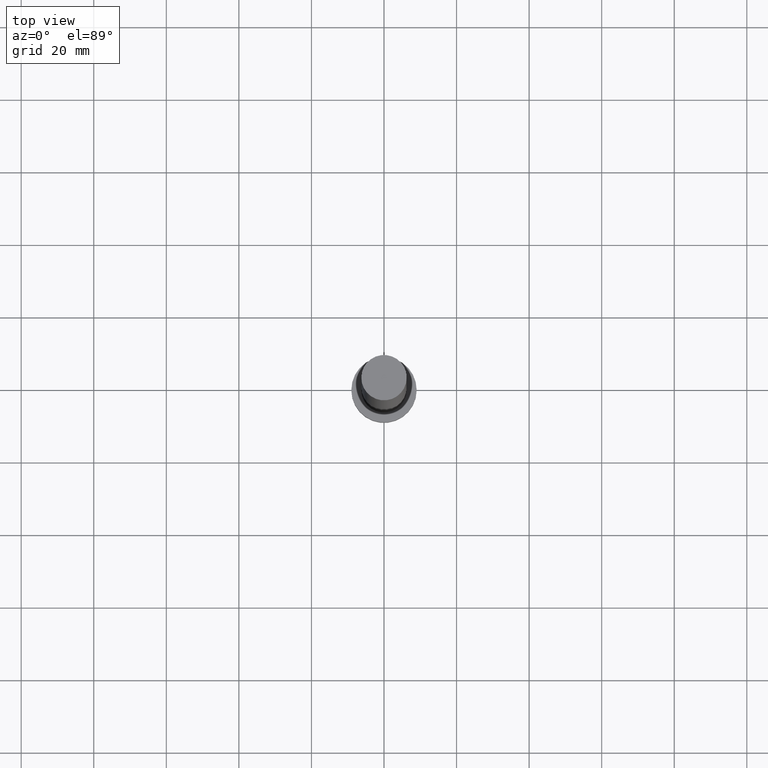
[diagram: clean part render]
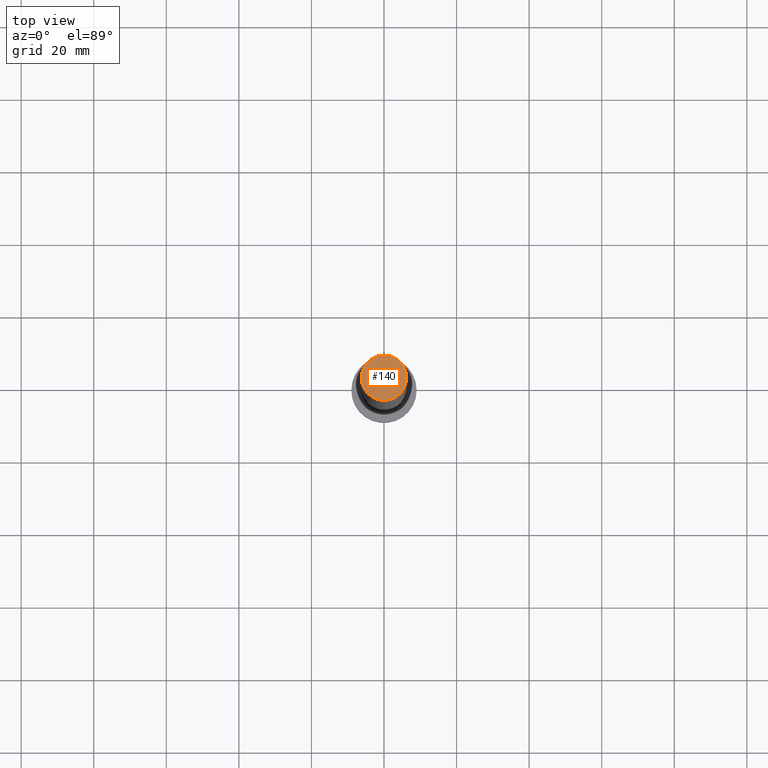
[diagram: same view with one face highlighted and labeled with its STEP entity id]
A machine part, top view. The second image highlights one B-rep face of the part: STEP entity #140.
In plain terms, the highlighted planar face has unit normal (0, 0, 1).
Its self-contained STEP definition (entity closure, byte-faithful):
#10 = CIRCLE ( 'NONE', #42, 6.250000000000000000 ) ;
#15 = DIRECTION ( 'NONE',  ( 0.000000000000000000, 0.000000000000000000, 1.000000000000000000 ) ) ;
#29 = VERTEX_POINT ( 'NONE', #205 ) ;
#42 = AXIS2_PLACEMENT_3D ( 'NONE', #85, #71, #188 ) ;
#49 = CARTESIAN_POINT ( 'NONE',  ( -6.250000000000000000, 0.000000000000000000, 200.0000000000000000 ) ) ;
#57 = AXIS2_PLACEMENT_3D ( 'NONE', #128, #112, #231 ) ;
#63 = EDGE_CURVE ( 'NONE', #204, #29, #93, .T. ) ;
#67 = ORIENTED_EDGE ( 'NONE', *, *, #177, .T. ) ;
#71 = DIRECTION ( 'NONE',  ( 0.000000000000000000, 0.000000000000000000, 1.000000000000000000 ) ) ;
#85 = CARTESIAN_POINT ( 'NONE',  ( 0.000000000000000000, 0.000000000000000000, 200.0000000000000000 ) ) ;
#93 = CIRCLE ( 'NONE', #57, 6.250000000000000000 ) ;
#108 = FACE_OUTER_BOUND ( 'NONE', #162, .T. ) ;
#112 = DIRECTION ( 'NONE',  ( 0.000000000000000000, 0.000000000000000000, 1.000000000000000000 ) ) ;
#124 = AXIS2_PLACEMENT_3D ( 'NONE', #189, #15, #233 ) ;
#128 = CARTESIAN_POINT ( 'NONE',  ( 0.000000000000000000, 0.000000000000000000, 200.0000000000000000 ) ) ;
#140 = ADVANCED_FACE ( 'NONE', ( #108 ), #196, .T. ) ;
#162 = EDGE_LOOP ( 'NONE', ( #224, #67 ) ) ;
#177 = EDGE_CURVE ( 'NONE', #29, #204, #10, .T. ) ;
#188 = DIRECTION ( 'NONE',  ( 1.000000000000000000, 0.000000000000000000, 0.000000000000000000 ) ) ;
#189 = CARTESIAN_POINT ( 'NONE',  ( 0.000000000000000000, 0.000000000000000000, 200.0000000000000000 ) ) ;
#196 = PLANE ( 'NONE',  #124 ) ;
#204 = VERTEX_POINT ( 'NONE', #49 ) ;
#205 = CARTESIAN_POINT ( 'NONE',  ( 6.250000000000000000, 7.654042494670957606E-16, 200.0000000000000000 ) ) ;
#224 = ORIENTED_EDGE ( 'NONE', *, *, #63, .T. ) ;
#231 = DIRECTION ( 'NONE',  ( 1.000000000000000000, 0.000000000000000000, 0.000000000000000000 ) ) ;
#233 = DIRECTION ( 'NONE',  ( 1.000000000000000000, 0.000000000000000000, -0.000000000000000000 ) ) ;